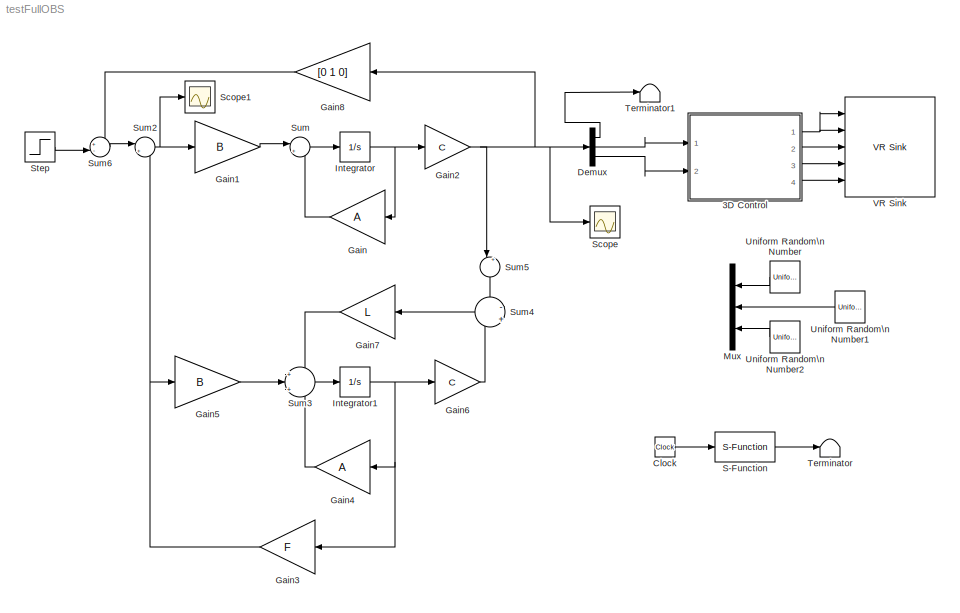
MODEL testFullOBS
KIND model
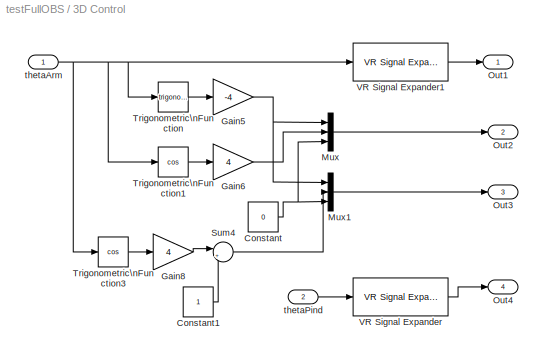
BLOCK [SubSystem] 3D Control
  FunctionWithSeparateData = off
  MaskHideContents = off
  MinAlgLoopOccurrences = off
  Opaque = off
  Ports = [2, 4]
  PropExecContextOutsideSubsystem = off
  RTWSystemCode = Auto
  RequestExecContextInheritance = off
  SID = 9
BLOCK [Constant] 3D Control/Constant
  OutDataType = fixdt(1, 16)
  OutScaling = 2^0
  SID = 12
  Value = 0
BLOCK [Constant] 3D Control/Constant1
  OutDataType = fixdt(1, 16)
  OutScaling = 2^0
  SID = 13
BLOCK [Gain] 3D Control/Gain5
  Gain = -4
  OutDataType = fixdt(1, 16)
  OutDataTypeMode = Inherit via internal rule
  OutDataTypeStr = Inherit: Inherit via internal rule
  OutScaling = 2^0
  ParamDataTypeStr = Inherit: Inherit via internal rule
  ParameterDataType = fixdt(1, 16)
  ParameterDataTypeMode = Inherit via internal rule
  ParameterScaling = 2^0
  SID = 14
  SaturateOnIntegerOverflow = off
BLOCK [Gain] 3D Control/Gain6
  Gain = 4
  OutDataType = fixdt(1, 16)
  OutDataTypeMode = Inherit via internal rule
  OutDataTypeStr = Inherit: Inherit via internal rule
  OutScaling = 2^0
  ParamDataTypeStr = Inherit: Inherit via internal rule
  ParameterDataType = fixdt(1, 16)
  ParameterDataTypeMode = Inherit via internal rule
  ParameterScaling = 2^0
  SID = 15
  SaturateOnIntegerOverflow = off
BLOCK [Gain] 3D Control/Gain8
  Gain = 4
  OutDataType = fixdt(1, 16)
  OutDataTypeMode = Inherit via internal rule
  OutDataTypeStr = Inherit: Inherit via internal rule
  OutScaling = 2^0
  ParamDataTypeStr = Inherit: Inherit via internal rule
  ParameterDataType = fixdt(1, 16)
  ParameterDataTypeMode = Inherit via internal rule
  ParameterScaling = 2^0
  SID = 16
  SaturateOnIntegerOverflow = off
BLOCK [Mux] 3D Control/Mux
  DisplayOption = bar
  Inputs = 3
  Ports = [3, 1]
  SID = 17
BLOCK [Mux] 3D Control/Mux1
  DisplayOption = bar
  Inputs = 3
  Ports = [3, 1]
  SID = 18
BLOCK [Outport] 3D Control/Out1
  IconDisplay = Port number
  OutDataType = fixdt(1, 16)
  OutScaling = 2^0
  SID = 25
BLOCK [Outport] 3D Control/Out2
  IconDisplay = Port number
  OutDataType = fixdt(1, 16)
  OutScaling = 2^0
  Port = 2
  SID = 26
BLOCK [Outport] 3D Control/Out3
  IconDisplay = Port number
  OutDataType = fixdt(1, 16)
  OutScaling = 2^0
  Port = 3
  SID = 27
BLOCK [Outport] 3D Control/Out4
  IconDisplay = Port number
  OutDataType = fixdt(1, 16)
  OutScaling = 2^0
  Port = 4
  SID = 28
BLOCK [Sum] 3D Control/Sum4
  IconShape = round
  InputSameDT = off
  Inputs = |+-
  OutDataType = fixdt(1, 16)
  OutDataTypeMode = Inherit via internal rule
  OutDataTypeStr = Inherit: Inherit via internal rule
  OutScaling = 2^0
  Ports = [2, 1]
  SID = 19
  SaturateOnIntegerOverflow = off
BLOCK [Trigonometry] 3D Control/Trigonometric\nFunction
  Ports = [1, 1]
  SID = 20
BLOCK [Trigonometry] 3D Control/Trigonometric\nFunction1
  Operator = cos
  Ports = [1, 1]
  SID = 21
BLOCK [Trigonometry] 3D Control/Trigonometric\nFunction3
  Operator = cos
  Ports = [1, 1]
  SID = 22
BLOCK [Reference] 3D Control/VR Signal Expander  REF=vrlib/VR Signal Expander
  FunctionWithSeparateData = off
  Ports = [1, 1]
  RTWMemSecDataConstants = Inherit from model
  RTWMemSecDataInternal = Inherit from model
  RTWMemSecDataParameters = Inherit from model
  RTWMemSecFuncExecute = Inherit from model
  RTWMemSecFuncInitTerm = Inherit from model
  SID = 81
  ShowPortLabels = FromPortIcon
  SourceBlock = vrlib/VR Signal Expander
  SourceType = VR Signal Expander
  SystemSampleTime = -1
  outidx = [4]
  outwidth = 4
BLOCK [Reference] 3D Control/VR Signal Expander1  REF=vrlib/VR Signal Expander
  FunctionWithSeparateData = off
  Ports = [1, 1]
  RTWMemSecDataConstants = Inherit from model
  RTWMemSecDataInternal = Inherit from model
  RTWMemSecDataParameters = Inherit from model
  RTWMemSecFuncExecute = Inherit from model
  RTWMemSecFuncInitTerm = Inherit from model
  SID = 82
  ShowPortLabels = FromPortIcon
  SourceBlock = vrlib/VR Signal Expander
  SourceType = VR Signal Expander
  SystemSampleTime = -1
  outidx = [4]
  outwidth = 4
BLOCK [Inport] 3D Control/thetaArm
  IconDisplay = Port number
  OutDataType = fixdt(1, 16)
  OutScaling = 2^0
  SID = 10
BLOCK [Inport] 3D Control/thetaPind
  IconDisplay = Port number
  OutDataType = fixdt(1, 16)
  OutScaling = 2^0
  Port = 2
  SID = 11
BLOCK [Clock] Clock
  Decimation = 10
  SID = 52
BLOCK [Demux] Demux
  DisplayOption = bar
  Outputs = 3
  Ports = [1, 3]
  SID = 8
BLOCK [Gain] Gain
  Gain = A
  Multiplication = Matrix(K*u)
  OutDataType = fixdt(1, 16)
  OutDataTypeMode = Inherit via internal rule
  OutDataTypeStr = Inherit: Inherit via internal rule
  OutScaling = 2^0
  ParamDataTypeStr = Inherit: Inherit via internal rule
  ParameterDataType = fixdt(1, 16)
  ParameterDataTypeMode = Inherit via internal rule
  ParameterScaling = 2^0
  SID = 2
  SaturateOnIntegerOverflow = off
BLOCK [Gain] Gain1
  Gain = B
  Multiplication = Matrix(K*u)
  OutDataType = fixdt(1, 16)
  OutDataTypeMode = Inherit via internal rule
  OutDataTypeStr = Inherit: Inherit via internal rule
  OutScaling = 2^0
  ParamDataTypeStr = Inherit: Inherit via internal rule
  ParameterDataType = fixdt(1, 16)
  ParameterDataTypeMode = Inherit via internal rule
  ParameterScaling = 2^0
  SID = 3
  SaturateOnIntegerOverflow = off
BLOCK [Gain] Gain2
  Gain = C
  Multiplication = Matrix(K*u)
  OutDataType = fixdt(1, 16)
  OutDataTypeMode = Inherit via internal rule
  OutDataTypeStr = Inherit: Inherit via internal rule
  OutScaling = 2^0
  ParamDataTypeStr = Inherit: Inherit via internal rule
  ParameterDataType = fixdt(1, 16)
  ParameterDataTypeMode = Inherit via internal rule
  ParameterScaling = 2^0
  SID = 4
  SaturateOnIntegerOverflow = off
BLOCK [Gain] Gain3
  Gain = F
  Multiplication = Matrix(K*u)
  OutDataType = fixdt(1, 16)
  OutDataTypeMode = Inherit via internal rule
  OutDataTypeStr = Inherit: Inherit via internal rule
  OutScaling = 2^0
  ParamDataTypeStr = Inherit: Inherit via internal rule
  ParameterDataType = fixdt(1, 16)
  ParameterDataTypeMode = Inherit via internal rule
  ParameterScaling = 2^0
  SID = 57
  SaturateOnIntegerOverflow = off
BLOCK [Gain] Gain4
  Gain = A
  Multiplication = Matrix(K*u)
  OutDataType = fixdt(1, 16)
  OutDataTypeMode = Inherit via internal rule
  OutDataTypeStr = Inherit: Inherit via internal rule
  OutScaling = 2^0
  ParamDataTypeStr = Inherit: Inherit via internal rule
  ParameterDataType = fixdt(1, 16)
  ParameterDataTypeMode = Inherit via internal rule
  ParameterScaling = 2^0
  SID = 83
  SaturateOnIntegerOverflow = off
BLOCK [Gain] Gain5
  Gain = B
  Multiplication = Matrix(K*u)
  OutDataType = fixdt(1, 16)
  OutDataTypeMode = Inherit via internal rule
  OutDataTypeStr = Inherit: Inherit via internal rule
  OutScaling = 2^0
  ParamDataTypeStr = Inherit: Inherit via internal rule
  ParameterDataType = fixdt(1, 16)
  ParameterDataTypeMode = Inherit via internal rule
  ParameterScaling = 2^0
  SID = 84
  SaturateOnIntegerOverflow = off
BLOCK [Gain] Gain6
  Gain = C
  Multiplication = Matrix(K*u)
  OutDataType = fixdt(1, 16)
  OutDataTypeMode = Inherit via internal rule
  OutDataTypeStr = Inherit: Inherit via internal rule
  OutScaling = 2^0
  ParamDataTypeStr = Inherit: Inherit via internal rule
  ParameterDataType = fixdt(1, 16)
  ParameterDataTypeMode = Inherit via internal rule
  ParameterScaling = 2^0
  SID = 85
  SaturateOnIntegerOverflow = off
BLOCK [Gain] Gain7
  Gain = L
  Multiplication = Matrix(K*u)
  OutDataType = fixdt(1, 16)
  OutDataTypeMode = Inherit via internal rule
  OutDataTypeStr = Inherit: Inherit via internal rule
  OutScaling = 2^0
  ParamDataTypeStr = Inherit: Inherit via internal rule
  ParameterDataType = fixdt(1, 16)
  ParameterDataTypeMode = Inherit via internal rule
  ParameterScaling = 2^0
  SID = 88
  SaturateOnIntegerOverflow = off
BLOCK [Gain] Gain8
  Gain = [0 1 0]
  Multiplication = Matrix(K*u)
  OutDataType = fixdt(1, 16)
  OutDataTypeMode = Inherit via internal rule
  OutDataTypeStr = Inherit: Inherit via internal rule
  OutScaling = 2^0
  ParamDataTypeStr = Inherit: Inherit via internal rule
  ParameterDataType = fixdt(1, 16)
  ParameterDataTypeMode = Inherit via internal rule
  ParameterScaling = 2^0
  SID = 90
  SaturateOnIntegerOverflow = off
BLOCK [Integrator] Integrator
  InitialCondition = [0 0 0 0]
  Ports = [1, 1]
  SID = 6
BLOCK [Integrator] Integrator1
  InitialCondition = [0 0 0 0]
  Ports = [1, 1]
  SID = 86
BLOCK [Mux] Mux
  DisplayOption = bar
  Inputs = 3
  Ports = [3, 1]
  SID = 94
BLOCK [S-Function] S-Function
  EnableBusSupport = off
  FunctionName = sfun_time
  Ports = [1, 1]
  SID = 53
BLOCK [Scope] Scope
  DataFormat = StructureWithTime
  Floating = off
  NumInputPorts = 1
  Ports = [1]
  SID = 98
  SampleTime = 0
  YMax = 175
  YMin = -225
BLOCK [Scope] Scope1
  DataFormat = StructureWithTime
  Floating = off
  NumInputPorts = 1
  Ports = [1]
  SID = 105
  SampleTime = 0
  SaveName = ScopeData1
  YMax = 0.45
  YMin = -0.4
BLOCK [Step] Step
  After = pi/8
  SID = 104
  SampleTime = 0
BLOCK [Sum] Sum
  IconShape = round
  InputSameDT = off
  Inputs = |++
  OutDataType = fixdt(1, 16)
  OutDataTypeMode = Inherit via internal rule
  OutDataTypeStr = Inherit: Inherit via internal rule
  OutScaling = 2^0
  Ports = [2, 1]
  SID = 7
  SaturateOnIntegerOverflow = off
BLOCK [Sum] Sum2
  IconShape = round
  InputSameDT = off
  Inputs = |++
  OutDataType = fixdt(1, 16)
  OutDataTypeMode = Inherit via internal rule
  OutDataTypeStr = Inherit: Inherit via internal rule
  OutScaling = 2^0
  Ports = [2, 1]
  SID = 92
  SaturateOnIntegerOverflow = off
BLOCK [Sum] Sum3
  IconShape = round
  InputSameDT = off
  Inputs = +|+|+
  OutDataType = fixdt(1, 16)
  OutDataTypeMode = Inherit via internal rule
  OutDataTypeStr = Inherit: Inherit via internal rule
  OutScaling = 2^0
  Ports = [3, 1]
  SID = 87
  SaturateOnIntegerOverflow = off
BLOCK [Sum] Sum4
  IconShape = round
  InputSameDT = off
  Inputs = -|+
  OutDataType = fixdt(1, 16)
  OutDataTypeMode = Inherit via internal rule
  OutDataTypeStr = Inherit: Inherit via internal rule
  OutScaling = 2^0
  Ports = [2, 1]
  SID = 89
  SaturateOnIntegerOverflow = off
BLOCK [Sum] Sum5
  IconShape = round
  InputSameDT = off
  Inputs = |++
  OutDataType = fixdt(1, 16)
  OutDataTypeMode = Inherit via internal rule
  OutDataTypeStr = Inherit: Inherit via internal rule
  OutScaling = 2^0
  Ports = [2, 1]
  SID = 97
  SaturateOnIntegerOverflow = off
BLOCK [Sum] Sum6
  IconShape = round
  InputSameDT = off
  Inputs = +-|
  OutDataType = fixdt(1, 16)
  OutDataTypeMode = Inherit via internal rule
  OutDataTypeStr = Inherit: Inherit via internal rule
  OutScaling = 2^0
  Ports = [2, 1]
  SID = 99
  SaturateOnIntegerOverflow = off
BLOCK [Terminator] Terminator
  SID = 54
BLOCK [Terminator] Terminator1
  SID = 103
BLOCK [UniformRandomNumber] Uniform Random\nNumber
  Minimum = 0
  SID = 93
  SampleTime = 0.1
  Seed = 234567
BLOCK [UniformRandomNumber] Uniform Random\nNumber1
  Maximum = pi/180
  Minimum = -pi/180
  SID = 95
  SampleTime = 0.1
BLOCK [UniformRandomNumber] Uniform Random\nNumber2
  Maximum = pi/90
  Minimum = -pi/90
  SID = 96
  SampleTime = 0.1
BLOCK [Reference] VR Sink  REF=vrlib/VR Sink
  AutoView = off
  FieldsWritten = Ball.rotation.4.1.double#Arm.rotation.4.1.double#Pind.translation.3.1.double#AP.translation.3.1.double#Pind.rotation.4.1.double
  InstantiateOnLoad = on
  Ports = [5]
  RemoteChange = off
  RemoteView = on
  SID = 29
  SampleTime = -1
  SourceBlock = vrlib/VR Sink
  SourceType = Virtual Reality Sink
  VideoDimensions = []
  ViewEnable = on
  WorldFileName = VRML1.WRL
LINE 3D Control/Constant1:1 -> 3D Control/Sum4:2
NET 3D Control/Constant:1 -> 3D Control/Mux1:3, 3D Control/Mux:3
NET 3D Control/Gain5:1 -> 3D Control/Mux1:1, 3D Control/Mux:1
LINE 3D Control/Gain6:1 -> 3D Control/Mux:2
LINE 3D Control/Gain8:1 -> 3D Control/Sum4:1
LINE 3D Control/Mux1:1 -> 3D Control/Out3:1
LINE 3D Control/Mux:1 -> 3D Control/Out2:1
LINE 3D Control/Sum4:1 -> 3D Control/Mux1:2
LINE 3D Control/Trigonometric\nFunction1:1 -> 3D Control/Gain6:1
LINE 3D Control/Trigonometric\nFunction3:1 -> 3D Control/Gain8:1
LINE 3D Control/Trigonometric\nFunction:1 -> 3D Control/Gain5:1
LINE 3D Control/VR Signal Expander1:1 -> 3D Control/Out1:1
LINE 3D Control/VR Signal Expander:1 -> 3D Control/Out4:1
NET 3D Control/thetaArm:1 -> 3D Control/Trigonometric\nFunction1:1, 3D Control/Trigonometric\nFunction3:1, 3D Control/Trigonometric\nFunction:1, 3D Control/VR Signal Expander1:1
LINE 3D Control/thetaPind:1 -> 3D Control/VR Signal Expander:1
NET 3D Control:1 -> VR Sink:1, VR Sink:2
LINE 3D Control:2 -> VR Sink:3
LINE 3D Control:3 -> VR Sink:4
LINE 3D Control:4 -> VR Sink:5
LINE Clock:1 -> S-Function:1
LINE Demux:1 -> Terminator1:1
LINE Demux:2 -> 3D Control:1
LINE Demux:3 -> 3D Control:2
LINE Gain1:1 -> Sum:1
NET Gain2:1 -> Demux:1, Gain8:1, Scope:1, Sum5:1
NET Gain3:1 -> Gain5:1, Sum2:2
LINE Gain4:1 -> Sum3:3
LINE Gain5:1 -> Sum3:2
LINE Gain6:1 -> Sum4:2
LINE Gain7:1 -> Sum3:1
LINE Gain8:1 -> Sum6:1
LINE Gain:1 -> Sum:2
NET Integrator1:1 -> Gain3:1, Gain4:1, Gain6:1
NET Integrator:1 -> Gain2:1, Gain:1
LINE S-Function:1 -> Terminator:1
LINE Step:1 -> Sum6:2
NET Sum2:1 -> Gain1:1, Scope1:1
LINE Sum3:1 -> Integrator1:1
LINE Sum4:1 -> Gain7:1
LINE Sum5:1 -> Sum4:1
LINE Sum6:1 -> Sum2:1
LINE Sum:1 -> Integrator:1
LINE Uniform Random\nNumber1:1 -> Mux:2
LINE Uniform Random\nNumber2:1 -> Mux:3
LINE Uniform Random\nNumber:1 -> Mux:1
note: NET lines group one-source signal fan-out (src -> all destinations, sorted); 1:1 wires keep LINE
